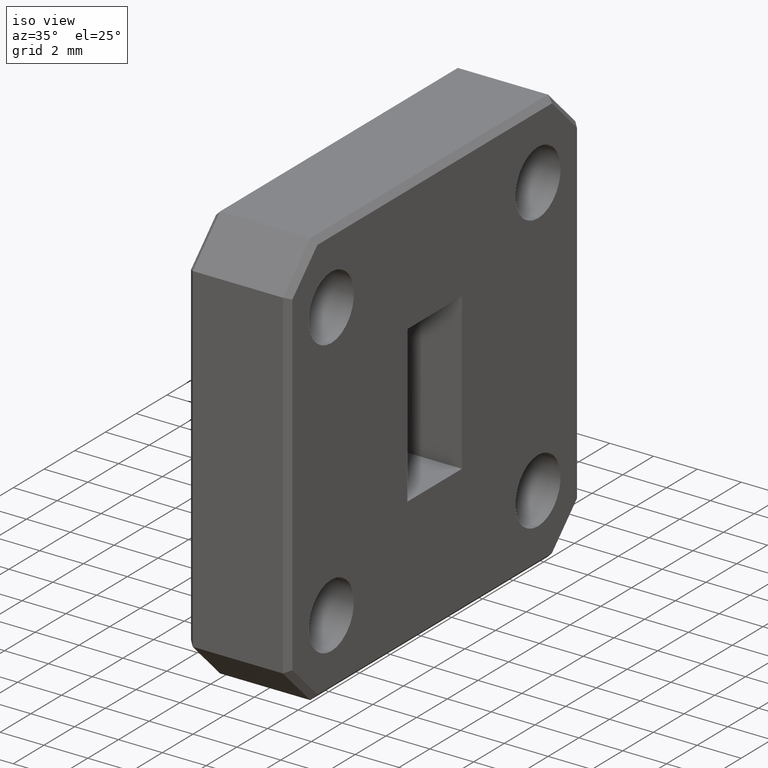
[diagram: clean part render]
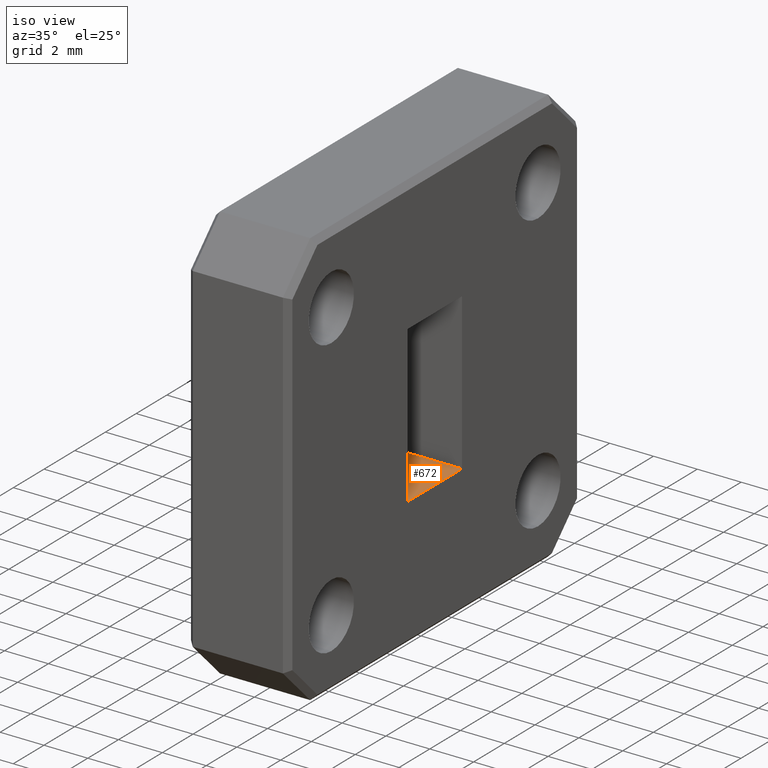
[diagram: same view with one face highlighted and labeled with its STEP entity id]
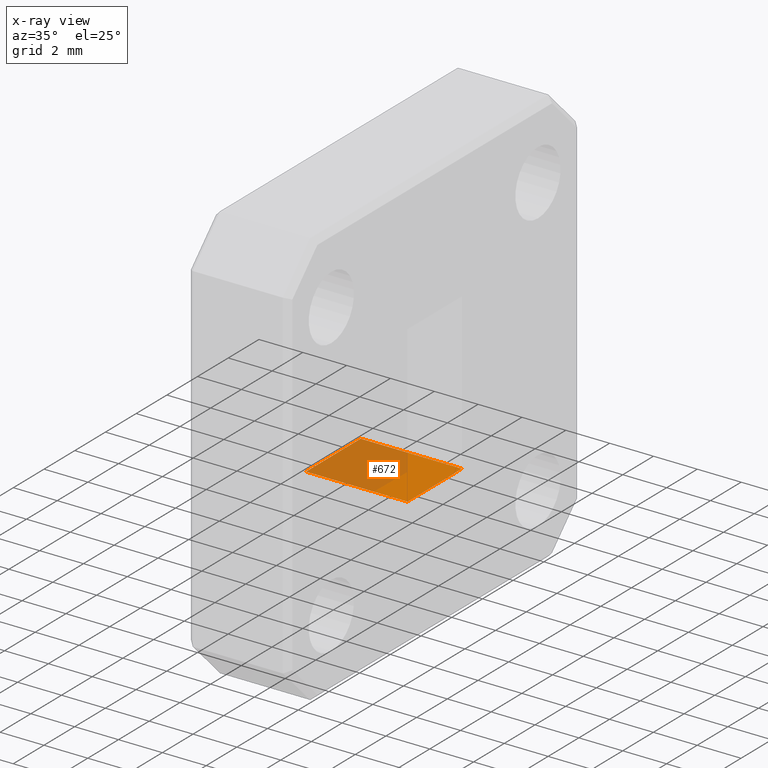
[diagram: x-ray of the same camera — body ghosted, the highlighted face saturated]
A machine part, iso view. The second image highlights one B-rep face of the part: STEP entity #672.
The next image is the same camera in x-ray: the body ghosted, the highlighted face saturated — about 63% of this face is hidden behind the body in this view.
In plain terms, the highlighted planar face has unit normal (0, -0, -1).
Its self-contained STEP definition (entity closure, byte-faithful):
#27 = EDGE_CURVE ( 'NONE', #364, #483, #689, .T. ) ;
#40 = VECTOR ( 'NONE', #717, 39.37007874015748100 ) ;
#46 = EDGE_CURVE ( 'NONE', #483, #460, #827, .T. ) ;
#94 = CARTESIAN_POINT ( 'NONE',  ( -3.937007874019685500E-005, 0.07000000000000002100, -0.1400000000000000100 ) ) ;
#134 = DIRECTION ( 'NONE',  ( -0.0000000000000000000, -1.000000000000000000, 2.439149994343092200E-016 ) ) ;
#200 = LINE ( 'NONE', #1177, #912 ) ;
#273 = CARTESIAN_POINT ( 'NONE',  ( 0.1820000000000000000, 0.07000000000000003400, -0.1400000000000000100 ) ) ;
#280 = AXIS2_PLACEMENT_3D ( 'NONE', #540, #1129, #665 ) ;
#305 = DIRECTION ( 'NONE',  ( 1.000000000000000000, 6.123233995736766000E-017, -0.0000000000000000000 ) ) ;
#312 = LINE ( 'NONE', #94, #40 ) ;
#364 = VERTEX_POINT ( 'NONE', #537 ) ;
#389 = EDGE_CURVE ( 'NONE', #364, #1090, #312, .T. ) ;
#441 = CARTESIAN_POINT ( 'NONE',  ( 0.0000000000000000000, -0.06999999999999999300, -0.1399999999999999900 ) ) ;
#460 = VERTEX_POINT ( 'NONE', #807 ) ;
#470 = EDGE_LOOP ( 'NONE', ( #524, #744, #714, #605 ) ) ;
#471 = EDGE_CURVE ( 'NONE', #460, #1090, #200, .T. ) ;
#483 = VERTEX_POINT ( 'NONE', #441 ) ;
#524 = ORIENTED_EDGE ( 'NONE', *, *, #27, .T. ) ;
#537 = CARTESIAN_POINT ( 'NONE',  ( 0.0000000000000000000, 0.07000000000000002100, -0.1400000000000000100 ) ) ;
#540 = CARTESIAN_POINT ( 'NONE',  ( -3.937007874019685500E-005, -0.06999999999999999300, -0.1399999999999999900 ) ) ;
#605 = ORIENTED_EDGE ( 'NONE', *, *, #389, .F. ) ;
#665 = DIRECTION ( 'NONE',  ( 0.0000000000000000000, 1.000000000000000000, -2.439149994343092200E-016 ) ) ;
#672 = ADVANCED_FACE ( 'NONE', ( #1080 ), #737, .F. ) ;
#689 = LINE ( 'NONE', #752, #1153 ) ;
#714 = ORIENTED_EDGE ( 'NONE', *, *, #471, .T. ) ;
#717 = DIRECTION ( 'NONE',  ( 1.000000000000000000, 6.123233995736766000E-017, -0.0000000000000000000 ) ) ;
#737 = PLANE ( 'NONE',  #280 ) ;
#744 = ORIENTED_EDGE ( 'NONE', *, *, #46, .T. ) ;
#752 = CARTESIAN_POINT ( 'NONE',  ( 0.0000000000000000000, -0.06999999999999999300, -0.1399999999999999900 ) ) ;
#807 = CARTESIAN_POINT ( 'NONE',  ( 0.1820000000000000000, -0.06999999999999997900, -0.1399999999999999900 ) ) ;
#827 = LINE ( 'NONE', #1122, #843 ) ;
#843 = VECTOR ( 'NONE', #305, 39.37007874015748100 ) ;
#901 = DIRECTION ( 'NONE',  ( 0.0000000000000000000, 1.000000000000000000, -2.439149994343092200E-016 ) ) ;
#912 = VECTOR ( 'NONE', #901, 39.37007874015748100 ) ;
#1080 = FACE_OUTER_BOUND ( 'NONE', #470, .T. ) ;
#1090 = VERTEX_POINT ( 'NONE', #273 ) ;
#1122 = CARTESIAN_POINT ( 'NONE',  ( -3.937007874019685500E-005, -0.06999999999999999300, -0.1399999999999999900 ) ) ;
#1129 = DIRECTION ( 'NONE',  ( 1.493548616606276200E-032, -2.439149994343092200E-016, -1.000000000000000000 ) ) ;
#1153 = VECTOR ( 'NONE', #134, 39.37007874015748100 ) ;
#1177 = CARTESIAN_POINT ( 'NONE',  ( 0.1820000000000000000, -0.06999999999999997900, -0.1399999999999999900 ) ) ;